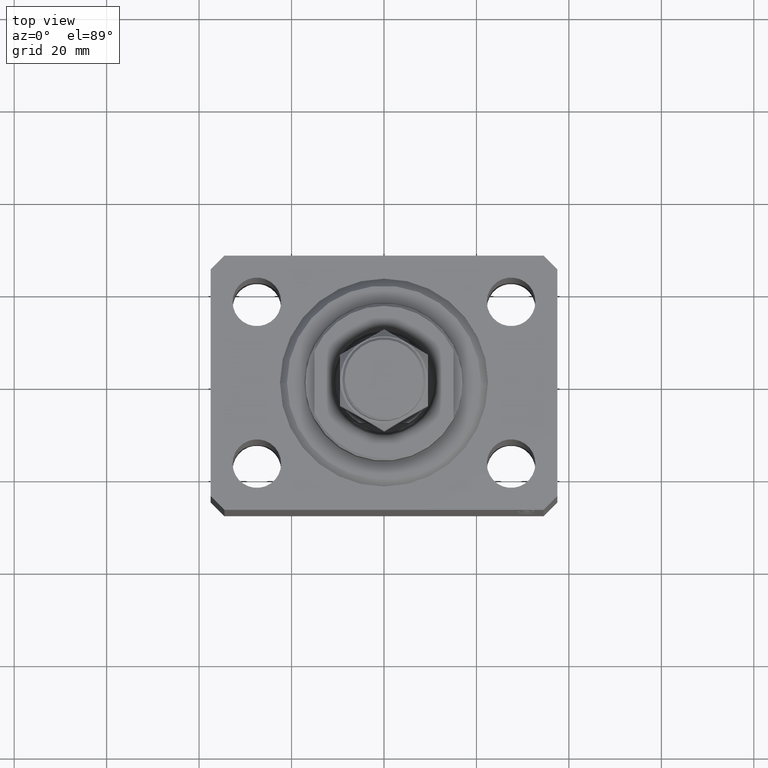
[diagram: clean part render]
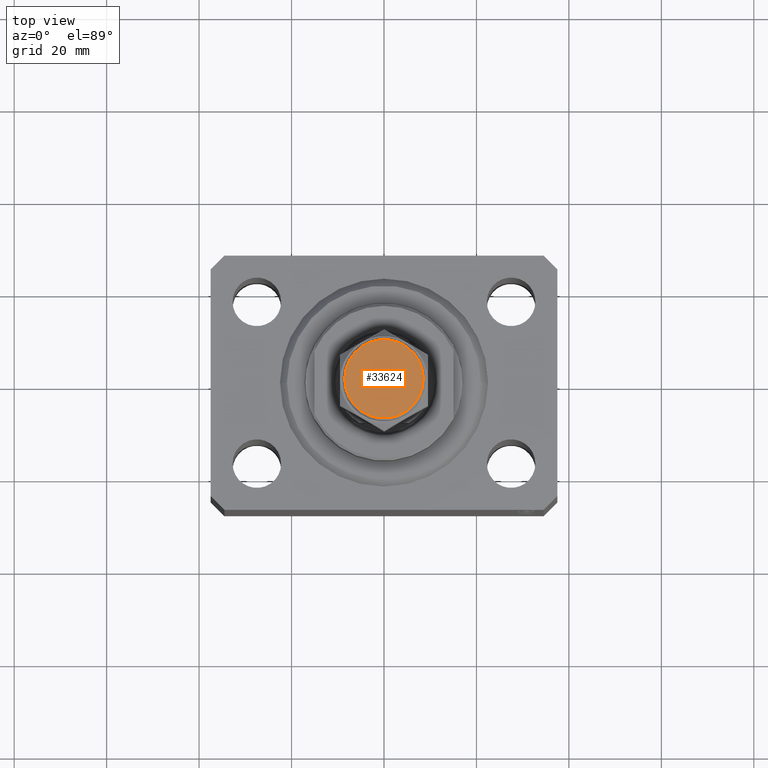
[diagram: same view with one face highlighted and labeled with its STEP entity id]
A machine part, top view. The second image highlights one B-rep face of the part: STEP entity #33624.
In plain terms, the highlighted planar face has unit normal (0, 0, 1).
Its self-contained STEP definition (entity closure, byte-faithful):
#457 = DIRECTION ( 'NONE',  ( 0.000000000000000000, 0.000000000000000000, 1.000000000000000000 ) ) ;
#5207 = EDGE_CURVE ( 'NONE', #36004, #17328, #11542, .T. ) ;
#9462 = DIRECTION ( 'NONE',  ( 0.000000000000000000, 0.000000000000000000, 1.000000000000000000 ) ) ;
#11542 = CIRCLE ( 'NONE', #37722, 8.499999999999992895 ) ;
#13897 = DIRECTION ( 'NONE',  ( 0.000000000000000000, 0.000000000000000000, 1.000000000000000000 ) ) ;
#15393 = CIRCLE ( 'NONE', #41601, 8.499999999999992895 ) ;
#17317 = CARTESIAN_POINT ( 'NONE',  ( -8.499999999999992895, 0.000000000000000000, 33.00000000000000000 ) ) ;
#17328 = VERTEX_POINT ( 'NONE', #17317 ) ;
#21280 = AXIS2_PLACEMENT_3D ( 'NONE', #34296, #9462, #45747 ) ;
#24541 = EDGE_LOOP ( 'NONE', ( #25821, #33827 ) ) ;
#25821 = ORIENTED_EDGE ( 'NONE', *, *, #37376, .T. ) ;
#26489 = CARTESIAN_POINT ( 'NONE',  ( 0.000000000000000000, 0.000000000000000000, 33.00000000000000000 ) ) ;
#31236 = FACE_OUTER_BOUND ( 'NONE', #24541, .T. ) ;
#33624 = ADVANCED_FACE ( 'NONE', ( #31236 ), #41544, .T. ) ;
#33827 = ORIENTED_EDGE ( 'NONE', *, *, #5207, .T. ) ;
#34296 = CARTESIAN_POINT ( 'NONE',  ( 0.000000000000000000, 0.000000000000000000, 33.00000000000000000 ) ) ;
#34556 = CARTESIAN_POINT ( 'NONE',  ( 8.499999999999992895, 1.071565949253933532E-15, 33.00000000000000000 ) ) ;
#36004 = VERTEX_POINT ( 'NONE', #34556 ) ;
#37376 = EDGE_CURVE ( 'NONE', #17328, #36004, #15393, .T. ) ;
#37722 = AXIS2_PLACEMENT_3D ( 'NONE', #46000, #13897, #42472 ) ;
#40760 = DIRECTION ( 'NONE',  ( 1.000000000000000000, 0.000000000000000000, 0.000000000000000000 ) ) ;
#41544 = PLANE ( 'NONE',  #21280 ) ;
#41601 = AXIS2_PLACEMENT_3D ( 'NONE', #26489, #457, #40760 ) ;
#42472 = DIRECTION ( 'NONE',  ( 1.000000000000000000, 0.000000000000000000, 0.000000000000000000 ) ) ;
#45747 = DIRECTION ( 'NONE',  ( 1.000000000000000000, 0.000000000000000000, -0.000000000000000000 ) ) ;
#46000 = CARTESIAN_POINT ( 'NONE',  ( 0.000000000000000000, 0.000000000000000000, 33.00000000000000000 ) ) ;